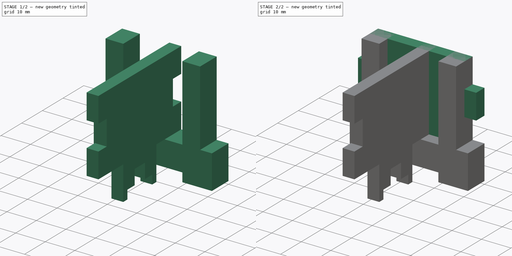
[diagram: build sequence overview — one tinted view per stage of 2, left to right]
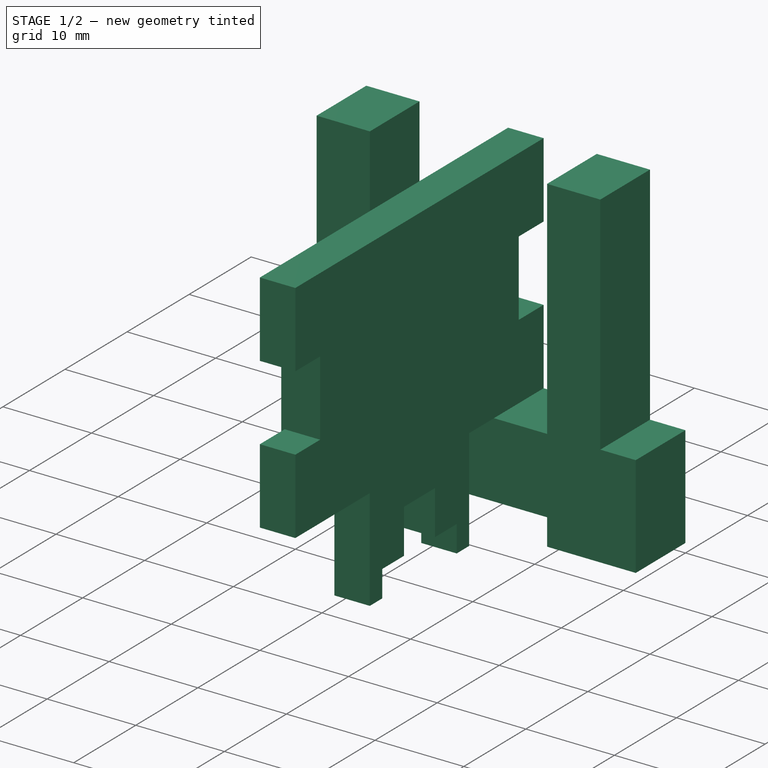
[diagram: stage 1 of 2 — iso view after this stage's code; geometry added in this stage tinted green]
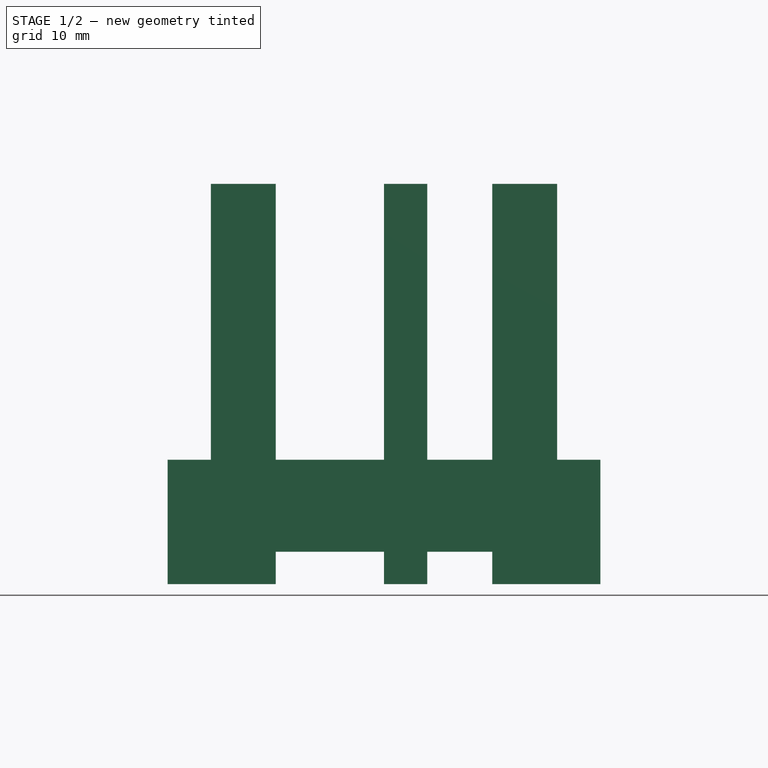
[diagram: stage 1 of 2 — front view after this stage's code; geometry added in this stage tinted green]
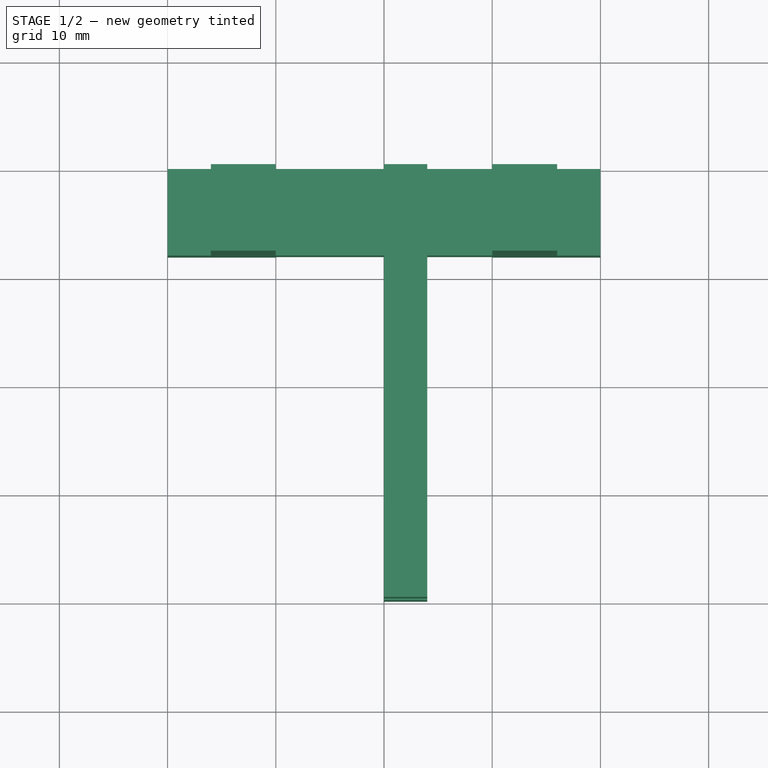
[diagram: stage 1 of 2 — top view after this stage's code; geometry added in this stage tinted green]
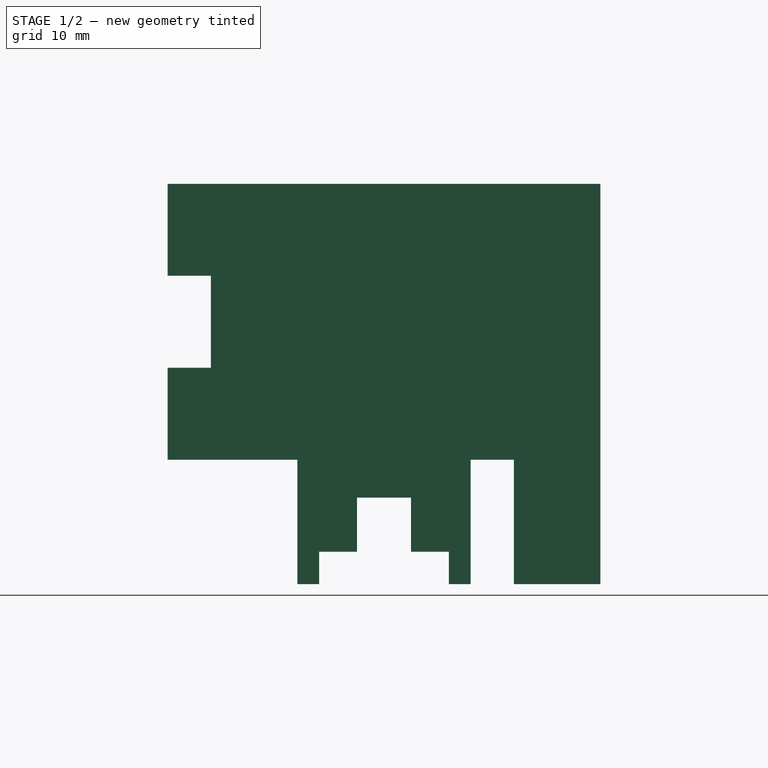
[diagram: stage 1 of 2 — right view after this stage's code; geometry added in this stage tinted green]
FCSTD DOCUMENT  (FreeCAD 0.19R24291 (Git))
Label: ri-speakertest02
License: All rights reserved
LicenseURL: http://en.wikipedia.org/wiki/All_rights_reserved
objects: Sketcher::SketchObject×6, PartDesign::Pad×3, PartDesign::Body×3, Part::Part2DObjectPython×3
note: 18 computed .brp shape members not serialized (recipe doc carries the construction recipe); baked Part::Feature solids carry a one-line shape summary decoded from their .brp

FEATURE [PartDesign::Body] Body  label="frontwall"
  Group = -> [Sketch,Pad]
  Origin = -> Origin
  Tip = -> Pad
FEATURE [Sketcher::SketchObject] Sketch001
  FullyConstrained = true
  MapMode = 5
  Placement = pos=(0,0,0) rot=(0.57735,0.57735,0.57735;2.0944rad)
  Support = -> [YZ_Plane001]
  expr: Constraints[58] = Sketch.Constraints.baseplate
  expr: Constraints[56] = 3 * Sketch.Constraints.thickness
  expr: Constraints[54] = Sketch.Constraints.thickness
  expr: Constraints[51] = sum(Sketch.Constraints.tooth; Sketch.Constraints.baseplate)
  expr: Constraints[49] = Sketch.Constraints.tooth
  expr: Constraints[59] = Sketch.Constraints.base - Sketch.Constraints.thickness * 2
  expr: Constraints[43] = sum(Sketch.Constraints.length; Sketch.Constraints.thickness * 2)
  sketch-geometry (24):
    g0: LineSegment StartX=0 StartY=37 StartZ=0 EndX=0 EndY=28.5 EndZ=0
    g1: LineSegment StartX=0 StartY=28.5 StartZ=0 EndX=-4 EndY=28.5 EndZ=0
    g2: LineSegment StartX=-4 StartY=28.5 StartZ=0 EndX=-4 EndY=20 EndZ=0
    g3: LineSegment StartX=-4 StartY=20 StartZ=0 EndX=0 EndY=20 EndZ=0
    g4: LineSegment StartX=0 StartY=20 StartZ=0 EndX=0 EndY=11.5 EndZ=0
    g5: LineSegment StartX=0 StartY=11.5 StartZ=0 EndX=-12 EndY=11.5 EndZ=0
    g6: LineSegment StartX=-12 StartY=11.5 StartZ=0 EndX=-12 EndY=0 EndZ=0
    g7: LineSegment StartX=-12 StartY=0 StartZ=0 EndX=-14 EndY=0 EndZ=0
    g8: LineSegment StartX=-14 StartY=0 StartZ=0 EndX=-14 EndY=3 EndZ=0
    g9: LineSegment StartX=-14 StartY=3 StartZ=0 EndX=-17.5 EndY=3 EndZ=0
    g10: LineSegment StartX=-26 StartY=3 StartZ=0 EndX=-26 EndY=0 EndZ=0
    g11: LineSegment StartX=-26 StartY=0 StartZ=0 EndX=-28 EndY=0 EndZ=0
    g12: LineSegment StartX=-28 StartY=0 StartZ=0 EndX=-28 EndY=11.5 EndZ=0
    g13: LineSegment StartX=-28 StartY=11.5 StartZ=0 EndX=-40 EndY=11.5 EndZ=0
    g14: LineSegment StartX=-40 StartY=11.5 StartZ=0 EndX=-40 EndY=20 EndZ=0
    g15: LineSegment StartX=-40 StartY=20 StartZ=0 EndX=-36 EndY=20 EndZ=0
    g16: LineSegment StartX=-36 StartY=20 StartZ=0 EndX=-36 EndY=28.5 EndZ=0
    g17: LineSegment StartX=-36 StartY=28.5 StartZ=0 EndX=-40 EndY=28.5 EndZ=0
    g18: LineSegment StartX=-40 StartY=28.5 StartZ=0 EndX=-40 EndY=37 EndZ=0
    g19: LineSegment StartX=-40 StartY=37 StartZ=0 EndX=0 EndY=37 EndZ=0
    g20: LineSegment StartX=-22.5 StartY=3 StartZ=0 EndX=-22.5 EndY=8 EndZ=0
    g21: LineSegment StartX=-22.5 StartY=8 StartZ=0 EndX=-17.5 EndY=8 EndZ=0
    g22: LineSegment StartX=-17.5 StartY=8 StartZ=0 EndX=-17.5 EndY=3 EndZ=0
    g23: LineSegment StartX=-22.5 StartY=3 StartZ=0 EndX=-26 EndY=3 EndZ=0
  constraints (71):
    c: PointOnObject(g0,g-2)
    c: PointOnObject(g0,g-2)
    c: Coincident(g0,g1)
    c: Horizontal(g1)
    c: Coincident(g1,g2)
    c: Vertical(g2)
    c: Coincident(g2,g3)
    c: PointOnObject(g3,g-2)
    c: Horizontal(g3)
    c: Coincident(g3,g4)
    c: PointOnObject(g4,g-2)
    c: Coincident(g4,g5)
    c: Coincident(g5,g6)
    c: PointOnObject(g6,g-1)
    c: Vertical(g6)
    c: Coincident(g6,g7)
    c: PointOnObject(g7,g-1)
    c: Coincident(g7,g8)
    c: Vertical(g8)
    c: Coincident(g8,g9)
    c: Horizontal(g9)
    c: Coincident(g23,g10)
    c: PointOnObject(g10,g-1)
    c: Coincident(g10,g11)
    c: PointOnObject(g11,g-1)
    c: Coincident(g11,g12)
    c: Vertical(g12)
    c: Vertical(g10)
    c: Coincident(g12,g13)
    c: Horizontal(g13)
    c: Coincident(g13,g14)
    c: Vertical(g14)
    c: Coincident(g14,g15)
    c: Horizontal(g15)
    c: Coincident(g15,g16)
    c: Vertical(g16)
    c: Coincident(g16,g17)
    c: Horizontal(g17)
    c: Coincident(g17,g18)
    c: Vertical(g18)
    c: Coincident(g18,g19)
    c: Horizontal(g19)
    c: Coincident(g19,g0)
    c: DistanceX(g19,g19) = 40
    c: Equal(g0,g18)
    c: Equal(g18,g16)
    c: Equal(g16,g2)
    c: Equal(g2,g4)
    c: Equal(g4,g14)
    c: DistanceY(g18,g18) = 8.5
    c: Horizontal(g5)
    c: DistanceY(g12,g12) = 11.5
    c: Equal(g17,g15)
    c: Equal(g15,g1)
    c: DistanceX(g17,g17) = 4
    c: Equal(g13,g5)
    c: DistanceX(g13,g13) = 12
    c: Equal(g11,g7)
    c: DistanceY(g10,g10) = 3
    c: DistanceX(g11,g11) = 2
    c: Vertical(g20)
    c: Coincident(g20,g21)
    c: Coincident(g21,g22)
    c: Vertical(g22)
    c: Horizontal(g21)
    c: Coincident(g9,g22)
    c: Coincident(g23,g20)
    c: Tangent(g9,g23)
    c: Equal(g20,g21)
    c: DistanceX(g21,g21) = 5
    c: Equal(g23,g9)
FEATURE [PartDesign::Pad] Pad001
  Direction = (1,1,1)
  Length = 4
  Length2 = 100
  Placement = pos=(0,0,0) rot=(0.57735,0.57735,0.57735;2.0944rad)
  Profile = -> Sketch001
  Refine = true
  Type = 0
FEATURE [PartDesign::Body] Body001  label="sidewall"
  Group = -> [Sketch001,Pad001]
  Origin = -> Origin001
  Tip = -> Pad001
FEATURE [Sketcher::SketchObject] Sketch002
  FullyConstrained = true
  MapMode = 5
  Placement = pos=(0,0,0) rot=(1,0,0;1.5708rad)
  Support = -> [XZ_Plane002]
  expr: Constraints[46] = <<Sketch>>.Constraints.tooth * 3
  expr: Constraints[45] = <<Sketch>>.Constraints.length
  expr: Constraints[36] = sum(<<Sketch>>.Constraints.tooth; <<Sketch>>.Constraints.baseplate)
  expr: Constraints[39] = <<Sketch>>.Constraints.thickness
  expr: Constraints[35] = <<Sketch>>.Constraints.baseplate
  expr: Constraints[34] = <<Sketch>>.Constraints.base
  sketch-geometry (16):
    g0: LineSegment StartX=-20 StartY=11.5 StartZ=0 EndX=-20 EndY=0 EndZ=0
    g1: LineSegment StartX=-20 StartY=0 StartZ=0 EndX=-10 EndY=0 EndZ=0
    g2: LineSegment StartX=-10 StartY=0 StartZ=0 EndX=-10 EndY=3 EndZ=0
    g3: LineSegment StartX=-10 StartY=3 StartZ=0 EndX=10 EndY=3 EndZ=0
    g4: LineSegment StartX=10 StartY=3 StartZ=0 EndX=10 EndY=0 EndZ=0
    g5: LineSegment StartX=10 StartY=0 StartZ=0 EndX=20 EndY=0 EndZ=0
    g6: LineSegment StartX=20 StartY=0 StartZ=0 EndX=20 EndY=11.5 EndZ=0
    g7: LineSegment StartX=20 StartY=11.5 StartZ=0 EndX=16 EndY=11.5 EndZ=0
    g8: LineSegment StartX=16 StartY=11.5 StartZ=0 EndX=16 EndY=37 EndZ=0
    g9: LineSegment StartX=16 StartY=37 StartZ=0 EndX=10 EndY=37 EndZ=0
    g10: LineSegment StartX=10 StartY=37 StartZ=0 EndX=10 EndY=11.5 EndZ=0
    g11: LineSegment StartX=10 StartY=11.5 StartZ=0 EndX=-10 EndY=11.5 EndZ=0
    g12: LineSegment StartX=-10 StartY=11.5 StartZ=0 EndX=-10 EndY=37 EndZ=0
    g13: LineSegment StartX=-10 StartY=37 StartZ=0 EndX=-16 EndY=37 EndZ=0
    g14: LineSegment StartX=-16 StartY=37 StartZ=0 EndX=-16 EndY=11.5 EndZ=0
    g15: LineSegment StartX=-16 StartY=11.5 StartZ=0 EndX=-20 EndY=11.5 EndZ=0
  constraints (47):
    c: PointOnObject(g0,g-1)
    c: Vertical(g0)
    c: Coincident(g0,g1)
    c: PointOnObject(g1,g-1)
    c: Coincident(g1,g2)
    c: Vertical(g2)
    c: Coincident(g2,g3)
    c: Horizontal(g3)
    c: Coincident(g3,g4)
    c: Vertical(g4)
    c: Coincident(g4,g5)
    c: PointOnObject(g5,g-1)
    c: Coincident(g5,g6)
    c: Vertical(g6)
    c: Coincident(g6,g7)
    c: Coincident(g7,g8)
    c: Vertical(g8)
    c: Coincident(g8,g9)
    c: Horizontal(g9)
    c: Coincident(g9,g10)
    c: Vertical(g10)
    c: Coincident(g10,g11)
    c: Horizontal(g11)
    c: Coincident(g11,g12)
    c: Vertical(g12)
    c: Coincident(g12,g13)
    c: Horizontal(g13)
    c: Coincident(g13,g14)
    c: Vertical(g14)
    c: Coincident(g14,g15)
    c: Coincident(g15,g0)
    c: Horizontal(g15)
    c: Horizontal(g7)
    c: Equal(g1,g5)
    c: DistanceX(g1,g1) = 10
    c: DistanceY(g2,g2) = 3
    c: DistanceY(g0,g0) = 11.5
    c: Equal(g0,g6)
    c: Equal(g15,g7)
    c: DistanceX(g15,g15) = 4
    c: Equal(g14,g12)
    c: Equal(g12,g10)
    c: Equal(g13,g9)
    c: DistanceX(g13,g13) = 6
    c: Symmetric(g1,g4,g-1)
    c: DistanceX(g13,g8) = 32
    c: DistanceY(g14,g14) = 25.5
FEATURE [PartDesign::Pad] Pad002
  Direction = (1,1,1)
  Length = 8
  Length2 = 100
  Placement = pos=(0,0,0) rot=(1,0,0;1.5708rad)
  Profile = -> Sketch002
  Refine = true
  Type = 0
FEATURE [PartDesign::Body] Body002  label="support"
  Group = -> [Sketch002,Pad002]
  Origin = -> Origin002
  Tip = -> Pad002
FEATURE [Part::Part2DObjectPython] Shape2DView  # Draft 2D object (typed FeaturePython)
  Base = -> Sketch
  FuseArch = false
  HiddenLines = false
  InPlace = true
  Projection = (0,-1,0)
  ProjectionMode = 0
  SegmentLength = 0.05
  Tessellation = false
  VisibleOnly = false
FEATURE [Sketcher::SketchObject] Sketch003  label="frontwall001"
  FullyConstrained = false
  sketch-geometry (20):
    g0: LineSegment StartX=-37 StartY=-16 StartZ=0 EndX=-37 EndY=16 EndZ=0
    g1: LineSegment StartX=-37 StartY=16 StartZ=0 EndX=-28.5 EndY=16 EndZ=0
    g2: LineSegment StartX=-28.5 StartY=16 StartZ=0 EndX=-28.5 EndY=20 EndZ=0
    g3: LineSegment StartX=-28.5 StartY=20 StartZ=0 EndX=-20 EndY=20 EndZ=0
    g4: LineSegment StartX=-20 StartY=20 StartZ=0 EndX=-20 EndY=16 EndZ=0
    g5: LineSegment StartX=-20 StartY=16 StartZ=0 EndX=-11.5 EndY=16 EndZ=0
    g6: LineSegment StartX=-11.5 StartY=16 StartZ=0 EndX=-11.5 EndY=20 EndZ=0
    g7: LineSegment StartX=-11.5 StartY=20 StartZ=0 EndX=-2.629e-13 EndY=20 EndZ=0
    g8: LineSegment StartX=-2.629e-13 StartY=20 StartZ=0 EndX=-2.629e-13 EndY=10 EndZ=0
    g9: LineSegment StartX=-2.629e-13 StartY=10 StartZ=0 EndX=-3 EndY=10 EndZ=0
    g10: LineSegment StartX=-3 StartY=10 StartZ=0 EndX=-3 EndY=-10 EndZ=0
    g11: LineSegment StartX=-3 StartY=-10 StartZ=0 EndX=2.633e-13 EndY=-10 EndZ=0
    g12: LineSegment StartX=2.633e-13 StartY=-10 StartZ=0 EndX=2.633e-13 EndY=-20 EndZ=0
    g13: LineSegment StartX=2.633e-13 StartY=-20 StartZ=0 EndX=-11.5 EndY=-20 EndZ=0
    g14: LineSegment StartX=-11.5 StartY=-20 StartZ=0 EndX=-11.5 EndY=-16 EndZ=0
    g15: LineSegment StartX=-11.5 StartY=-16 StartZ=0 EndX=-20 EndY=-16 EndZ=0
    g16: LineSegment StartX=-20 StartY=-16 StartZ=0 EndX=-20 EndY=-20 EndZ=0
    g17: LineSegment StartX=-20 StartY=-20 StartZ=0 EndX=-28.5 EndY=-20 EndZ=0
    g18: LineSegment StartX=-28.5 StartY=-20 StartZ=0 EndX=-28.5 EndY=-16 EndZ=0
    g19: LineSegment StartX=-28.5 StartY=-16 StartZ=0 EndX=-37 EndY=-16 EndZ=0
FEATURE [Part::Part2DObjectPython] Shape2DView001  # Draft 2D object (typed FeaturePython)
  Base = -> Sketch002
  FuseArch = false
  HiddenLines = false
  InPlace = true
  Projection = (0,-1,0)
  ProjectionMode = 0
  SegmentLength = 0.05
  Tessellation = false
  VisibleOnly = false
FEATURE [Sketcher::SketchObject] Sketch004  label="support001"
  FullyConstrained = false
  sketch-geometry (16):
    g0: LineSegment StartX=-11.5 StartY=-20 StartZ=0 EndX=0 EndY=-20 EndZ=0
    g1: LineSegment StartX=0 StartY=-20 StartZ=0 EndX=0 EndY=-10 EndZ=0
    g2: LineSegment StartX=0 StartY=-10 StartZ=0 EndX=-3 EndY=-10 EndZ=0
    g3: LineSegment StartX=-3 StartY=-10 StartZ=0 EndX=-3 EndY=10 EndZ=0
    g4: LineSegment StartX=-3 StartY=10 StartZ=0 EndX=0 EndY=10 EndZ=0
    g5: LineSegment StartX=0 StartY=10 StartZ=0 EndX=0 EndY=20 EndZ=0
    g6: LineSegment StartX=0 StartY=20 StartZ=0 EndX=-11.5 EndY=20 EndZ=0
    g7: LineSegment StartX=-11.5 StartY=20 StartZ=0 EndX=-11.5 EndY=16 EndZ=0
    g8: LineSegment StartX=-11.5 StartY=16 StartZ=0 EndX=-37 EndY=16 EndZ=0
    g9: LineSegment StartX=-37 StartY=16 StartZ=0 EndX=-37 EndY=10 EndZ=0
    g10: LineSegment StartX=-37 StartY=10 StartZ=0 EndX=-11.5 EndY=10 EndZ=0
    g11: LineSegment StartX=-11.5 StartY=10 StartZ=0 EndX=-11.5 EndY=-10 EndZ=0
    g12: LineSegment StartX=-11.5 StartY=-10 StartZ=0 EndX=-37 EndY=-10 EndZ=0
    g13: LineSegment StartX=-37 StartY=-10 StartZ=0 EndX=-37 EndY=-16 EndZ=0
    g14: LineSegment StartX=-37 StartY=-16 StartZ=0 EndX=-11.5 EndY=-16 EndZ=0
    g15: LineSegment StartX=-11.5 StartY=-16 StartZ=0 EndX=-11.5 EndY=-20 EndZ=0
FEATURE [Part::Part2DObjectPython] Shape2DView002  # Draft 2D object (typed FeaturePython)
  Base = -> Sketch001
  FuseArch = false
  HiddenLines = false
  InPlace = true
  Projection = (1,0,0)
  ProjectionMode = 0
  SegmentLength = 0.05
  Tessellation = false
  VisibleOnly = false
FEATURE [Sketcher::SketchObject] Sketch005  label="sidewall001"
  FullyConstrained = false
  sketch-geometry (24):
    g0: LineSegment StartX=3 StartY=22.5 StartZ=0 EndX=3 EndY=26 EndZ=0
    g1: LineSegment StartX=3 StartY=26 StartZ=0 EndX=5.8e-15 EndY=26 EndZ=0
    g2: LineSegment StartX=5.8e-15 StartY=26 StartZ=0 EndX=6.2e-15 EndY=28 EndZ=0
    g3: LineSegment StartX=6.2e-15 StartY=28 StartZ=0 EndX=11.5 EndY=28 EndZ=0
    g4: LineSegment StartX=11.5 StartY=28 StartZ=0 EndX=11.5 EndY=40 EndZ=0
    g5: LineSegment StartX=11.5 StartY=40 StartZ=0 EndX=20 EndY=40 EndZ=0
    g6: LineSegment StartX=20 StartY=40 StartZ=0 EndX=20 EndY=36 EndZ=0
    g7: LineSegment StartX=20 StartY=36 StartZ=0 EndX=28.5 EndY=36 EndZ=0
    g8: LineSegment StartX=28.5 StartY=36 StartZ=0 EndX=28.5 EndY=40 EndZ=0
    g9: LineSegment StartX=28.5 StartY=40 StartZ=0 EndX=37 EndY=40 EndZ=0
    g10: LineSegment StartX=37 StartY=40 StartZ=0 EndX=37 EndY=-7.1e-15 EndZ=0
    g11: LineSegment StartX=37 StartY=-8.2e-15 StartZ=0 EndX=28.5 EndY=-6.3e-15 EndZ=0
    g12: LineSegment StartX=28.5 StartY=-6.3e-15 StartZ=0 EndX=28.5 EndY=4 EndZ=0
    g13: LineSegment StartX=28.5 StartY=4 StartZ=0 EndX=20 EndY=4 EndZ=0
    g14: LineSegment StartX=20 StartY=4 StartZ=0 EndX=20 EndY=-4.4e-15 EndZ=0
    g15: LineSegment StartX=20 StartY=-4.4e-15 StartZ=0 EndX=11.5 EndY=-2.6e-15 EndZ=0
    g16: LineSegment StartX=11.5 StartY=-2.6e-15 StartZ=0 EndX=11.5 EndY=12 EndZ=0
    g17: LineSegment StartX=11.5 StartY=12 StartZ=0 EndX=3.6e-15 EndY=12 EndZ=0
    g18: LineSegment StartX=2.7e-15 StartY=12 StartZ=0 EndX=3.1e-15 EndY=14 EndZ=0
    g19: LineSegment StartX=3.1e-15 StartY=14 StartZ=0 EndX=3 EndY=14 EndZ=0
    g20: LineSegment StartX=3 StartY=14 StartZ=0 EndX=3 EndY=17.5 EndZ=0
    g21: LineSegment StartX=8 StartY=17.5 StartZ=0 EndX=3 EndY=17.5 EndZ=0
    g22: LineSegment StartX=8 StartY=22.5 StartZ=0 EndX=8 EndY=17.5 EndZ=0
    g23: LineSegment StartX=3 StartY=22.5 StartZ=0 EndX=8 EndY=22.5 EndZ=0
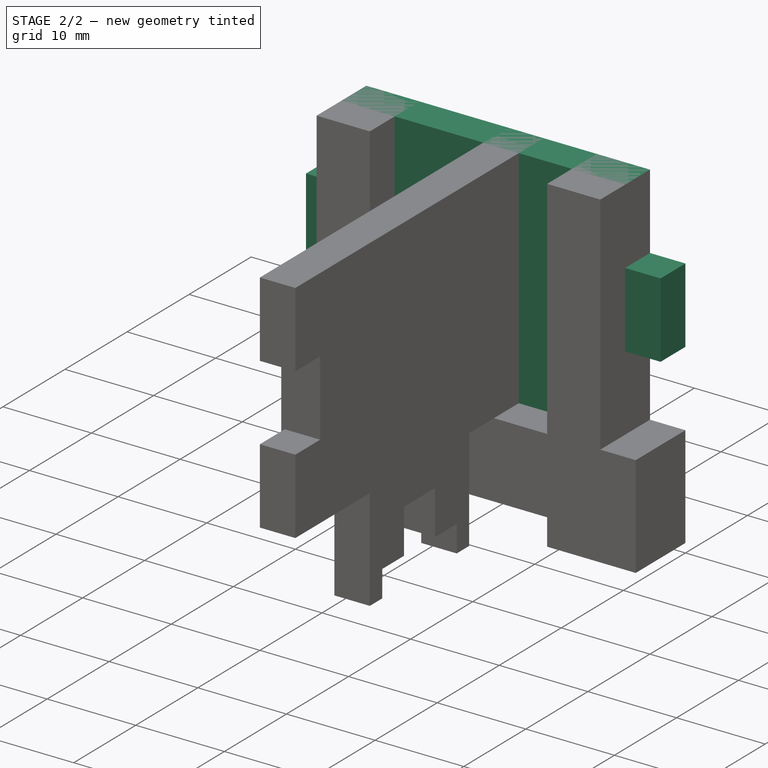
[diagram: stage 2 of 2 — iso view after this stage's code; geometry added in this stage tinted green]
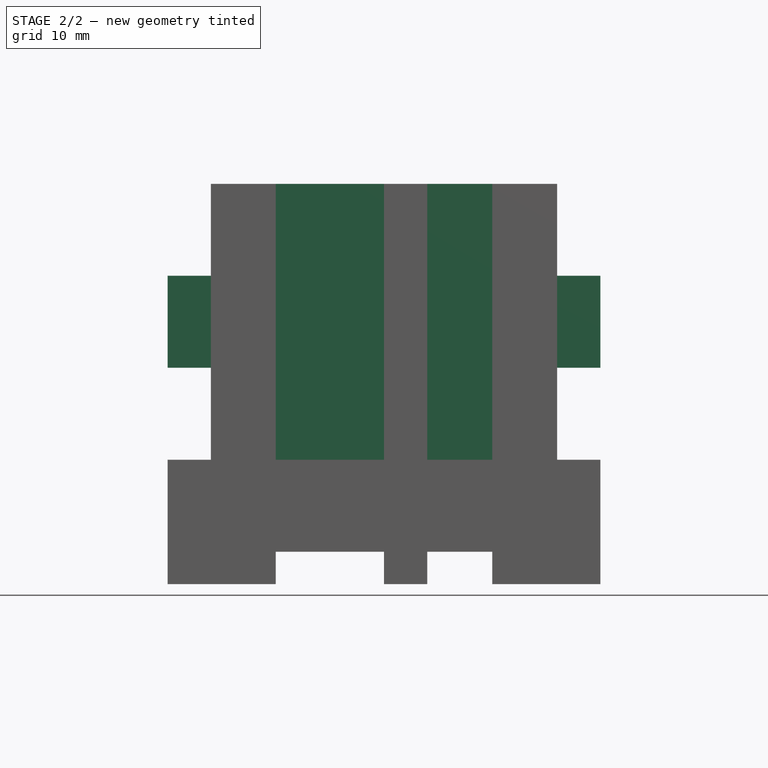
[diagram: stage 2 of 2 — front view after this stage's code; geometry added in this stage tinted green]
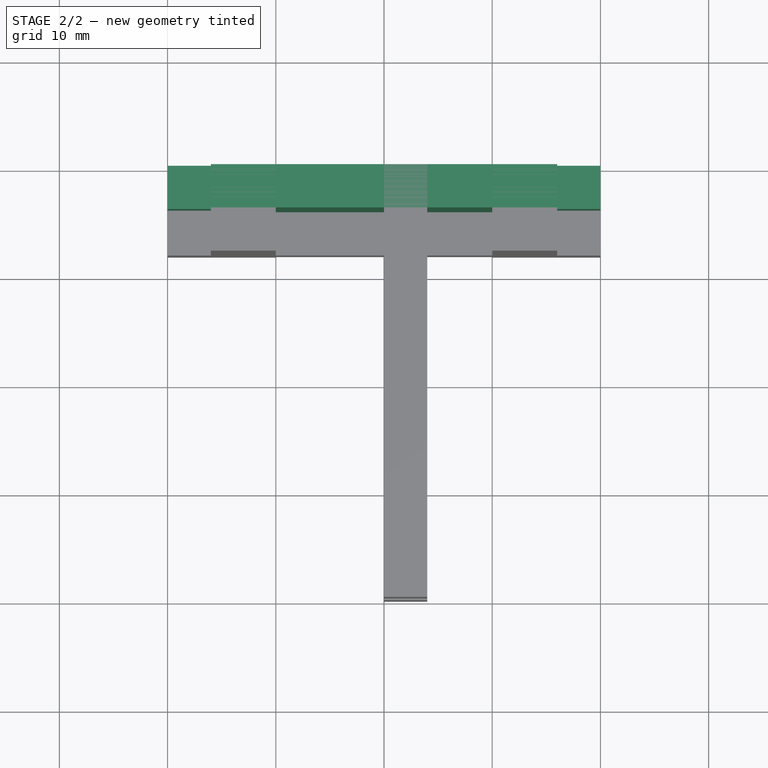
[diagram: stage 2 of 2 — top view after this stage's code; geometry added in this stage tinted green]
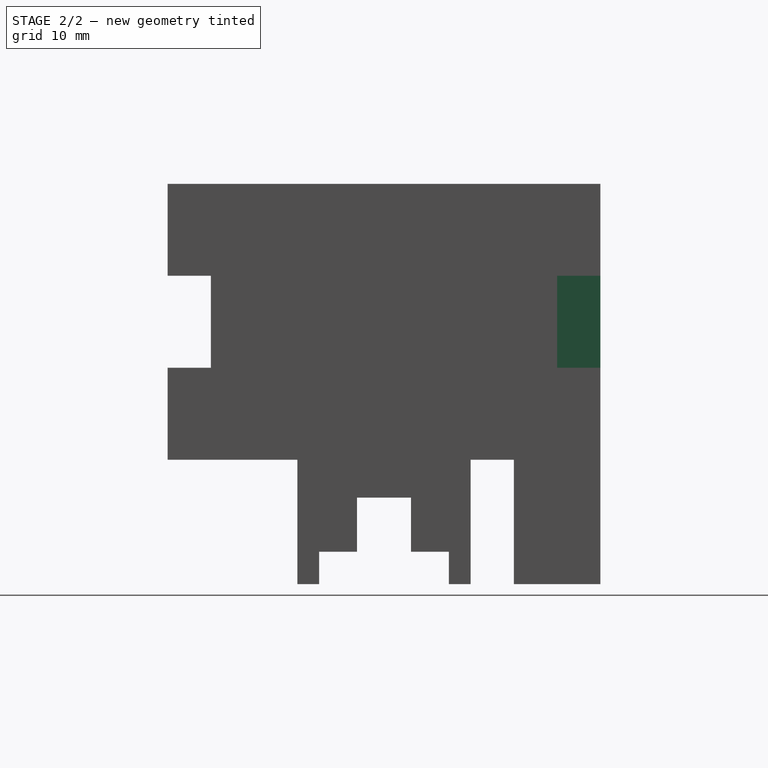
[diagram: stage 2 of 2 — right view after this stage's code; geometry added in this stage tinted green]
FEATURE [Sketcher::SketchObject] Sketch
  FullyConstrained = true
  MapMode = 5
  Placement = pos=(0,0,0) rot=(1,0,0;1.5708rad)
  Support = -> [XZ_Plane]
  expr: Constraints[57] = sum(.Constraints.tooth; .Constraints.baseplate)
  sketch-geometry (20):
    g0: LineSegment StartX=-16 StartY=37 StartZ=0 EndX=16 EndY=37 EndZ=0
    g1: LineSegment StartX=16 StartY=37 StartZ=0 EndX=16 EndY=28.5 EndZ=0
    g2: LineSegment StartX=16 StartY=28.5 StartZ=0 EndX=20 EndY=28.5 EndZ=0
    g3: LineSegment StartX=20 StartY=28.5 StartZ=0 EndX=20 EndY=20 EndZ=0
    g4: LineSegment StartX=20 StartY=20 StartZ=0 EndX=16 EndY=20 EndZ=0
    g5: LineSegment StartX=16 StartY=20 StartZ=0 EndX=16 EndY=11.5 EndZ=0
    g6: LineSegment StartX=16 StartY=11.5 StartZ=0 EndX=20 EndY=11.5 EndZ=0
    g7: LineSegment StartX=20 StartY=11.5 StartZ=0 EndX=20 EndY=2.629e-13 EndZ=0
    g8: LineSegment StartX=20 StartY=2.629e-13 StartZ=0 EndX=10 EndY=2.629e-13 EndZ=0
    g9: LineSegment StartX=10 StartY=2.629e-13 StartZ=0 EndX=10 EndY=3 EndZ=0
    g10: LineSegment StartX=10 StartY=3 StartZ=0 EndX=-10 EndY=3 EndZ=0
    g11: LineSegment StartX=-10 StartY=3 StartZ=0 EndX=-10 EndY=-2.633e-13 EndZ=0
    g12: LineSegment StartX=-10 StartY=-2.633e-13 StartZ=0 EndX=-20 EndY=-2.633e-13 EndZ=0
    g13: LineSegment StartX=-20 StartY=-2.633e-13 StartZ=0 EndX=-20 EndY=11.5 EndZ=0
    g14: LineSegment StartX=-20 StartY=11.5 StartZ=0 EndX=-16 EndY=11.5 EndZ=0
    g15: LineSegment StartX=-16 StartY=11.5 StartZ=0 EndX=-16 EndY=20 EndZ=0
    g16: LineSegment StartX=-16 StartY=20 StartZ=0 EndX=-20 EndY=20 EndZ=0
    g17: LineSegment StartX=-20 StartY=20 StartZ=0 EndX=-20 EndY=28.5 EndZ=0
    g18: LineSegment StartX=-20 StartY=28.5 StartZ=0 EndX=-16 EndY=28.5 EndZ=0
    g19: LineSegment StartX=-16 StartY=28.5 StartZ=0 EndX=-16 EndY=37 EndZ=0
  constraints (59):
    c: Horizontal(g0)
    c: Coincident(g0,g1)
    c: Vertical(g1)
    c: Coincident(g1,g2)
    c: Horizontal(g2)
    c: Coincident(g2,g3)
    c: Vertical(g3)
    c: Coincident(g3,g4)
    c: Horizontal(g4)
    c: Coincident(g4,g5)
    c: Vertical(g5)
    c: Coincident(g5,g6)
    c: Horizontal(g6)
    c: Coincident(g6,g7)
    c: Vertical(g7)
    c: Coincident(g7,g8)
    c: Horizontal(g8)
    c: Coincident(g8,g9)
    c: Vertical(g9)
    c: Horizontal(g10)
    c: Coincident(g10,g11)
    c: Vertical(g11)
    c: Coincident(g11,g12)
    c: Horizontal(g12)
    c: Coincident(g12,g13)
    c: Vertical(g13)
    c: Coincident(g13,g14)
    c: Coincident(g14,g15)
    c: Vertical(g15)
    c: Coincident(g15,g16)
    c: Horizontal(g16)
    c: Coincident(g16,g17)
    c: Vertical(g17)
    c: Coincident(g17,g18)
    c: Horizontal(g18)
    c: Coincident(g18,g19)
    c: Coincident(g19,g0)
    c: Vertical(g19)
    c: Horizontal(g14)
    c: DistanceX(g0,g0) = 32  'length'
    c: Equal(g19,g17)
    c: Equal(g17,g15)
    c: Equal(g15,g1)
    c: Equal(g1,g3)
    c: Equal(g3,g5)
    c: DistanceY(g19,g19) = 8.5  'tooth'
    c: DistanceX(g18,g18) = 4  'thickness'
    c: DistanceX(g12,g12) = 10  'base'
    c: Equal(g11,g9)
    c: Equal(g8,g12)
    c: Equal(g18,g16)
    c: Equal(g16,g14)
    c: Equal(g14,g6)
    c: Equal(g6,g4)
    c: Equal(g4,g2)
    c: Symmetric(g8,g11,g-1)
    c: DistanceY(g11,g11) = 3  'baseplate'
    c: DistanceY(g13,g13) = 11.5
    c: Coincident(g10,g9)
FEATURE [PartDesign::Pad] Pad
  Direction = (1,1,1)
  Length = 4
  Length2 = 100
  Placement = pos=(0,0,0) rot=(1,0,0;1.5708rad)
  Profile = -> Sketch
  Refine = true
  Type = 0
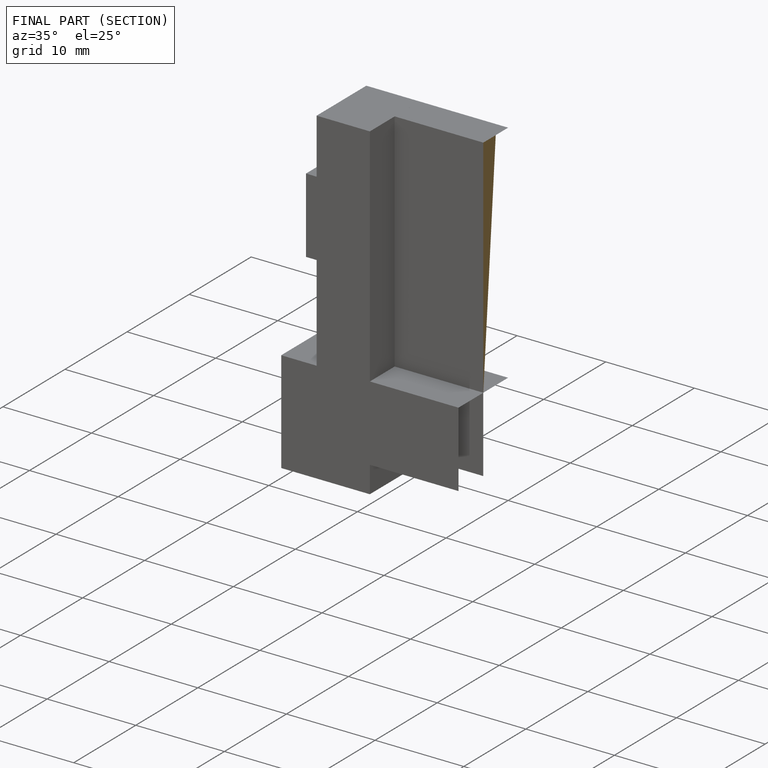
[diagram: finished part — half-section view (interior)]
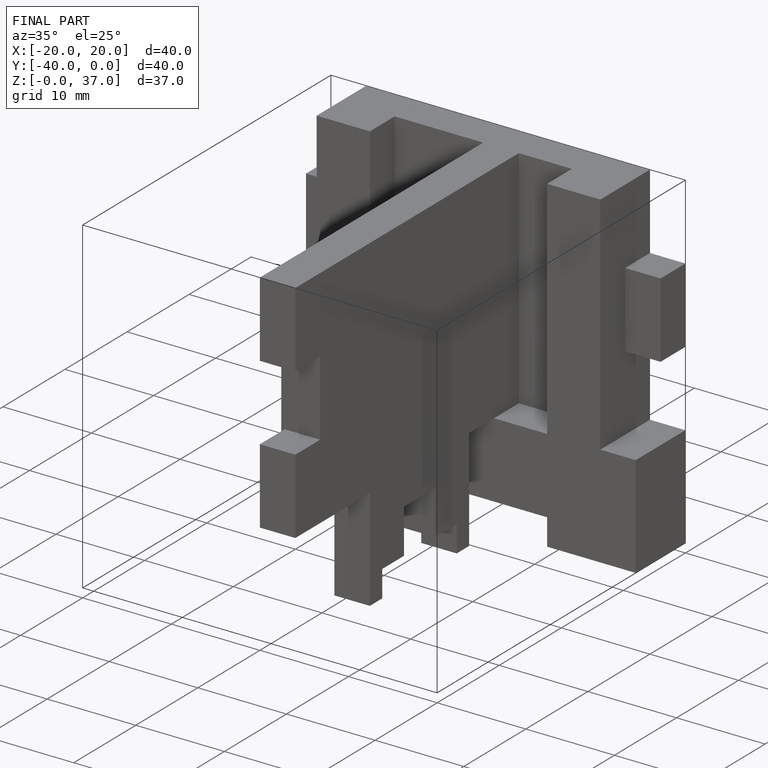
[diagram: finished part — iso view with bounding-box wireframe]
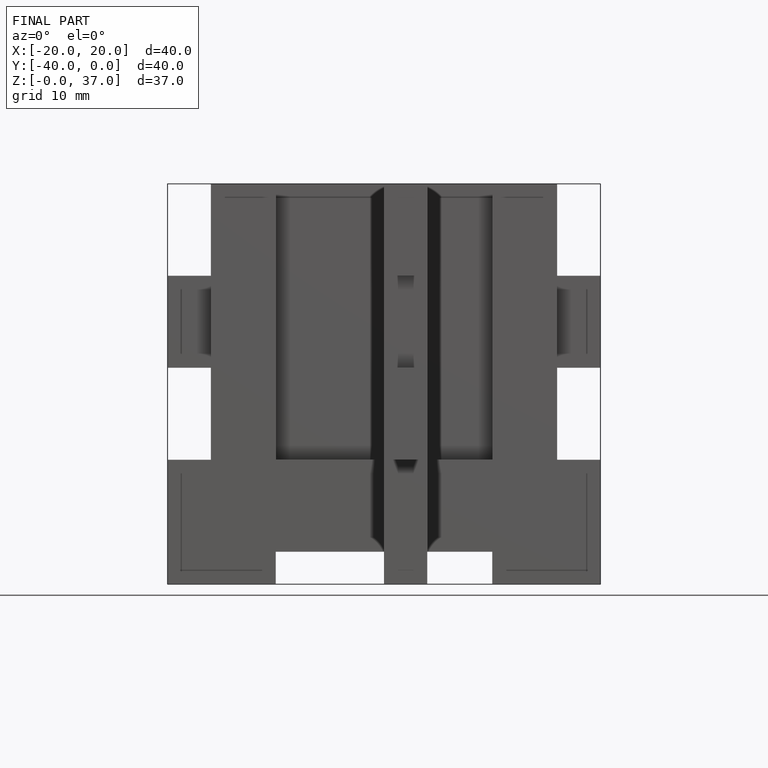
[diagram: finished part — front view with bounding-box wireframe]
